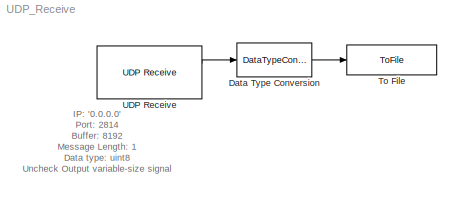
MODEL UDP_Receive
KIND model
BLOCK [DataTypeConversion] Data Type Conversion
  OutDataTypeStr = double
  RndMeth = Round
  SID = 28
  SaturateOnIntegerOverflow = off
BLOCK [ToFile] To File
  Filename = unity2simulink.mat
  Ports = [1]
  SID = 13
  SampleTime = 1/256
BLOCK [Reference] UDP Receive  REF=dspnetwork/UDP Receive
  Ports = [0, 2]
  SID = 2
  SourceBlock = dspnetwork/UDP Receive
  SourceType = UDP Receive
  blockingTime = 0
  dims = 1
  isVarSize = off
  localPort = 2814
  localURL = '0.0.0.0'
  recvBufferSize = 8192
  remotePort = -1
  remoteURL = '0.0.0.0'
  sampletime = 1/256
  showBlockingTime = off
  signalDatatype = uint8
ANNOTATION (root): IP: '0.0.0.0'\nPort: 2814\nBuffer: 8192\nMessage Length: 1\nData type: uint8\nUncheck Output variable-size signal\nSample time: 1/256
LINE Data Type Conversion:1 -> To File:1
LINE UDP Receive:1 -> Data Type Conversion:1
